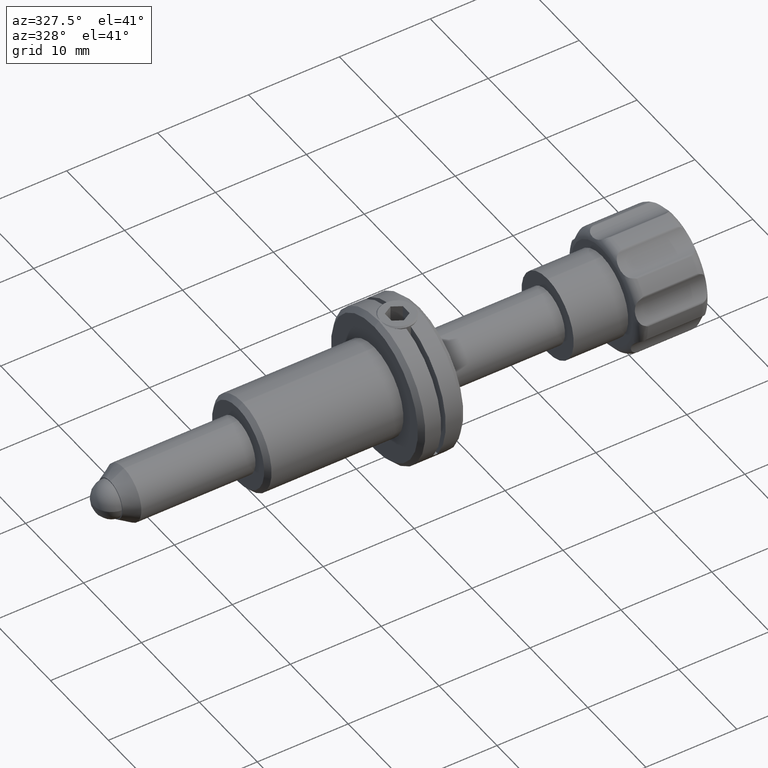
[diagram: clean part render]
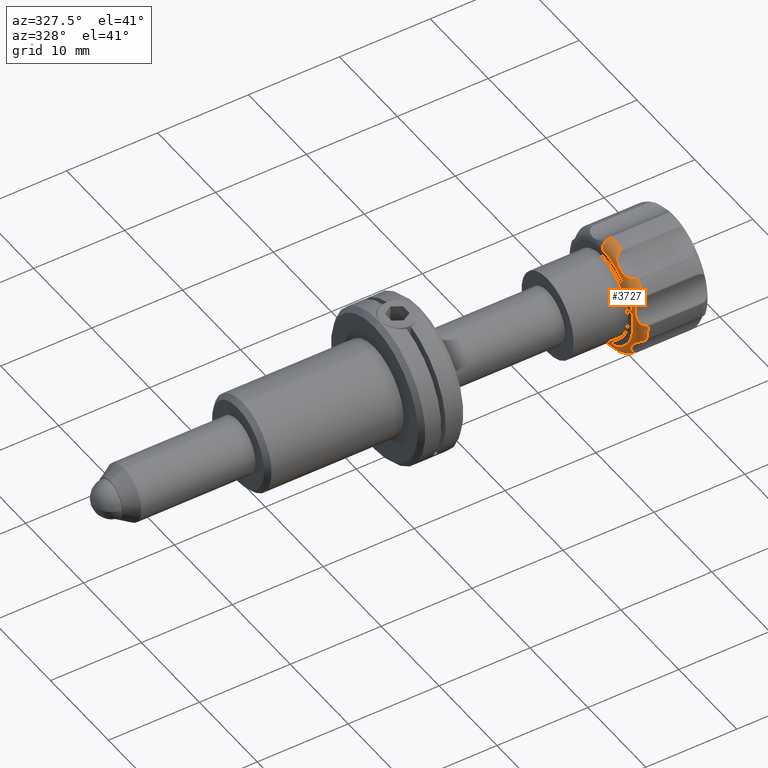
[diagram: same view with one face highlighted and labeled with its STEP entity id]
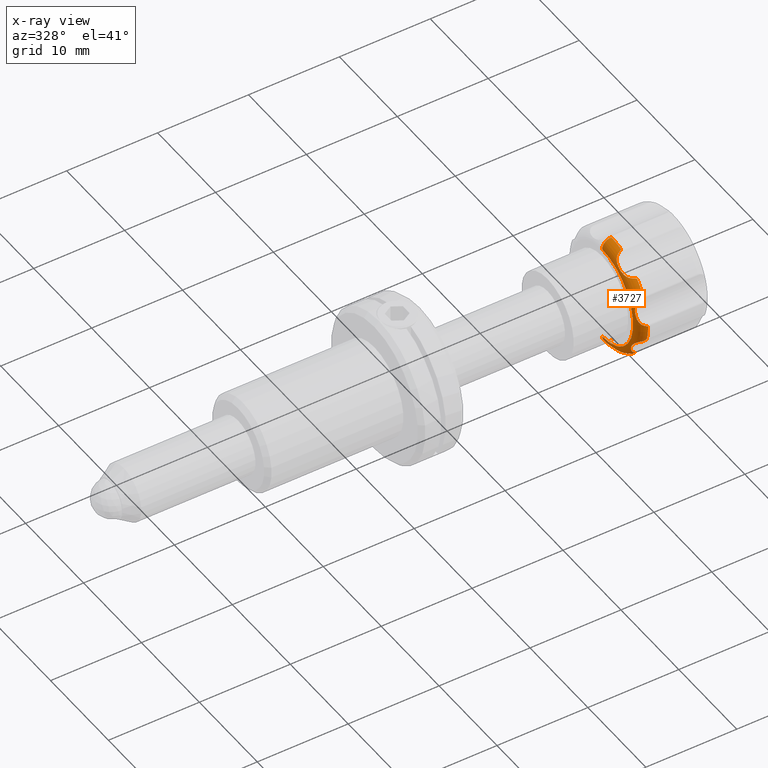
[diagram: x-ray of the same camera — body ghosted, the highlighted face saturated]
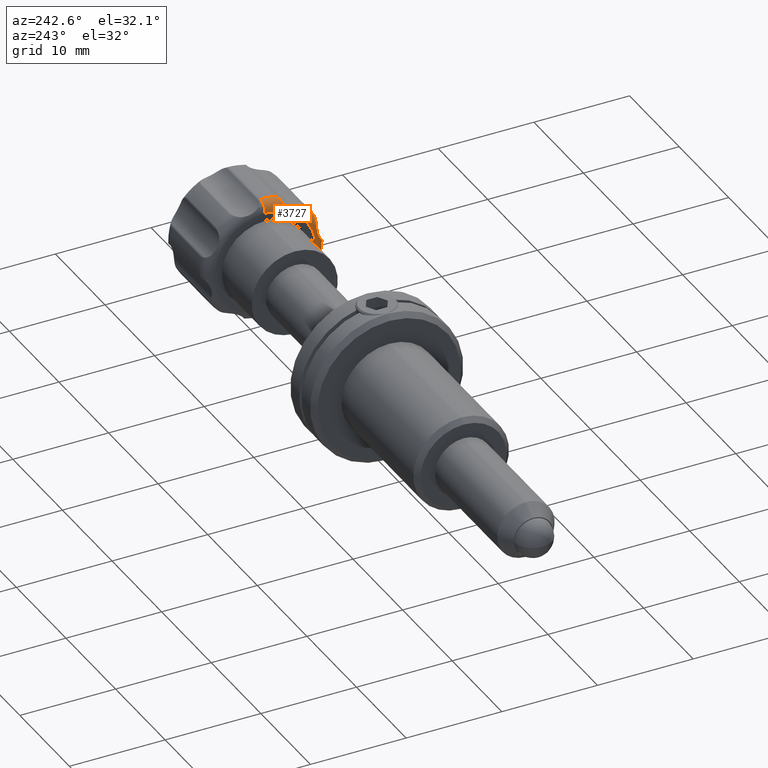
[diagram: same view with one face highlighted and labeled with its STEP entity id]
A machine part, auxiliary view. The second image highlights one B-rep face of the part: STEP entity #3727.
The next image is the same camera in x-ray: the body ghosted, the highlighted face saturated — about 0% of this face is hidden behind the body in this view.
A second angle (auxiliary view) of the same face is appended — the face is thin or edge-on in the first view.
In plain terms, the highlighted toroidal blend (fillet) surface has major radius 5.35 mm and minor (blend) radius 1 mm.
Its self-contained STEP definition (entity closure, byte-faithful):
#2 = CARTESIAN_POINT ( 'NONE',  ( 27.13921337448604021, -4.856283598709248750, -3.107576808534023627 ) ) ;
#8 = CARTESIAN_POINT ( 'NONE',  ( 27.91540443695953755, -6.093615518275886878, -1.762172362862720165 ) ) ;
#45 = CARTESIAN_POINT ( 'NONE',  ( 27.77944206506485969, -2.984056836229410870, -5.562879895844379696 ) ) ;
#47 = CIRCLE ( 'NONE', #3410, 1.000000000000000000 ) ;
#51 = CARTESIAN_POINT ( 'NONE',  ( 27.05000000000000426, -9.629649721936179265E-31, 3.851859888774471706E-30 ) ) ;
#56 = CARTESIAN_POINT ( 'NONE',  ( 27.95990894086483181, -3.088050639396993979, -5.548783547560642404 ) ) ;
#71 = ORIENTED_EDGE ( 'NONE', *, *, #3664, .F. ) ;
#82 = CARTESIAN_POINT ( 'NONE',  ( 27.69483520282409117, -2.933026279287377136, -5.559738344353715611 ) ) ;
#83 = EDGE_CURVE ( 'NONE', #690, #1685, #1389, .T. ) ;
#104 = VERTEX_POINT ( 'NONE', #1085 ) ;
#109 = CARTESIAN_POINT ( 'NONE',  ( 27.65267950003192965, -0.2589208520952931414, -6.262329555976413609 ) ) ;
#121 = CARTESIAN_POINT ( 'NONE',  ( 27.65267950005353015, -2.906932742517659651, -5.552796908396826048 ) ) ;
#125 = CARTESIAN_POINT ( 'NONE',  ( 27.53974654408672862, -4.172716725105521718, 4.611350560848902269 ) ) ;
#128 = ORIENTED_EDGE ( 'NONE', *, *, #2183, .T. ) ;
#130 = CARTESIAN_POINT ( 'NONE',  ( 28.05000000000000071, -3.132026596715888900, -5.523849146877983785 ) ) ;
#167 = ORIENTED_EDGE ( 'NONE', *, *, #3022, .F. ) ;
#171 = CARTESIAN_POINT ( 'NONE',  ( 27.13351138985510502, -1.360476839538218963, -5.588341936810441446 ) ) ;
#175 = CARTESIAN_POINT ( 'NONE',  ( 28.05000000000000071, -6.349806986227292782, 0.04950997535459428223 ) ) ;
#187 = CARTESIAN_POINT ( 'NONE',  ( 28.05000000000000426, -3.443357432102044523E-17, -2.211074569426205868E-16 ) ) ;
#209 = EDGE_CURVE ( 'NONE', #466, #858, #2190, .T. ) ;
#210 = ORIENTED_EDGE ( 'NONE', *, *, #2743, .T. ) ;
#211 = CARTESIAN_POINT ( 'NONE',  ( 27.16640943970278599, -0.9946609654149434210, -5.735078340428652055 ) ) ;
#232 = CARTESIAN_POINT ( 'NONE',  ( 27.25804361074120052, -5.464127793966206070, 2.392419713431666040 ) ) ;
#244 = EDGE_CURVE ( 'NONE', #3761, #1527, #2703, .T. ) ;
#249 = EDGE_CURVE ( 'NONE', #466, #1825, #1667, .T. ) ;
#263 = CARTESIAN_POINT ( 'NONE',  ( 27.13925720084247217, -5.119767319724039645, -2.651343011768362068 ) ) ;
#265 = CARTESIAN_POINT ( 'NONE',  ( 27.86828463751409757, -3.036876675556392513, -5.562879895869946800 ) ) ;
#280 = VERTEX_POINT ( 'NONE', #3391 ) ;
#309 = CARTESIAN_POINT ( 'NONE',  ( 27.98344650321710603, -5.542269083013157349, 3.099539979708065385 ) ) ;
#312 = VERTEX_POINT ( 'NONE', #3610 ) ;
#320 = DIRECTION ( 'NONE',  ( 0.000000000000000000, -5.204170427930324987E-18, 1.000000000000000000 ) ) ;
#328 = CARTESIAN_POINT ( 'NONE',  ( 27.54094784483719849, -1.906802449295098345, 5.920019630092001606 ) ) ;
#337 = CARTESIAN_POINT ( 'NONE',  ( 28.05000000000000426, -1.691273944614582803, 6.120628435403374645 ) ) ;
#350 = CARTESIAN_POINT ( 'NONE',  ( 27.44802519160618459, -4.072661661160530855, 4.614647577206733686 ) ) ;
#392 = ORIENTED_EDGE ( 'NONE', *, *, #3812, .T. ) ;
#453 = VERTEX_POINT ( 'NONE', #3697 ) ;
#466 = VERTEX_POINT ( 'NONE', #1663 ) ;
#475 = B_SPLINE_CURVE_WITH_KNOTS ( 'NONE', 3,
 ( #121, #82, #1578, #45 ),
 .UNSPECIFIED., .F., .F.,
 ( 4, 4 ),
 ( 7.021945501177915729E-16, 0.0001479757714944196511 ),
 .UNSPECIFIED. ) ;
#488 = CARTESIAN_POINT ( 'NONE',  ( 27.44775316104480112, -2.739344606769709145, -5.511423539205726918 ) ) ;
#508 = CARTESIAN_POINT ( 'NONE',  ( 27.18767208449510164, -2.136492834722592438, -5.458124016055490912 ) ) ;
#510 = CARTESIAN_POINT ( 'NONE',  ( 27.18767208449508743, -5.458124016055509564, 2.136492834722526712 ) ) ;
#522 = ORIENTED_EDGE ( 'NONE', *, *, #2997, .F. ) ;
#526 = CIRCLE ( 'NONE', #3214, 5.350000000000028955 ) ;
#592 = CARTESIAN_POINT ( 'NONE',  ( 27.78321307007622920, -1.823143063455625157, 6.047373725924073185 ) ) ;
#609 = AXIS2_PLACEMENT_3D ( 'NONE', #1532, #1246, #697 ) ;
#636 = ORIENTED_EDGE ( 'NONE', *, *, #249, .F. ) ;
#641 = ORIENTED_EDGE ( 'NONE', *, *, #2724, .F. ) ;
#688 = DIRECTION ( 'NONE',  ( -1.000000000000000000, 3.443357432102106769E-17, 2.211074569426361915E-16 ) ) ;
#690 = VERTEX_POINT ( 'NONE', #1279 ) ;
#697 = DIRECTION ( 'NONE',  ( 0.000000000000000000, -5.204170427930324987E-18, 1.000000000000000000 ) ) ;
#731 = B_SPLINE_CURVE_WITH_KNOTS ( 'NONE', 3,
 ( #3673, #1811, #1792, #2453, #309, #2467 ),
 .UNSPECIFIED., .F., .F.,
 ( 4, 2, 4 ),
 ( 7.019771604846601049E-16, 0.0002289455096684122487, 0.0004578910193361225307 ),
 .UNSPECIFIED. ) ;
#793 = DIRECTION ( 'NONE',  ( 1.000000000000000000, -3.443357432102106769E-17, -2.211074569426361915E-16 ) ) ;
#832 = VERTEX_POINT ( 'NONE', #884 ) ;
#835 = CARTESIAN_POINT ( 'NONE',  ( 27.25821204246627261, -4.658701631778276564, -3.725460657661715302 ) ) ;
#848 = CARTESIAN_POINT ( 'NONE',  ( 27.78310272331339448, -6.321292766106369143, 0.1997450345353473655 ) ) ;
#858 = VERTEX_POINT ( 'NONE', #2919 ) ;
#873 = CARTESIAN_POINT ( 'NONE',  ( 27.18803222192699565, -4.718761493344056035, -3.477886275079066891 ) ) ;
#877 = CARTESIAN_POINT ( 'NONE',  ( 27.78310272331338027, -4.611070049207614652, -4.328587912350943867 ) ) ;
#880 = CARTESIAN_POINT ( 'NONE',  ( 27.65267950003196162, -6.262329555976436701, 0.2589208520952119286 ) ) ;
#884 = CARTESIAN_POINT ( 'NONE',  ( 27.65267950003192965, -4.245051004748717993, 4.611220385363006713 ) ) ;
#894 = CARTESIAN_POINT ( 'NONE',  ( 27.65267950005353370, -1.870908493791702654, 5.981932203166544504 ) ) ;
#897 = CARTESIAN_POINT ( 'NONE',  ( 27.13351138985510147, -5.588341936810459210, 1.360476839538140359 ) ) ;
#910 = CARTESIAN_POINT ( 'NONE',  ( 27.18767208449509809, -5.370205075698812891, -2.348747932921162906 ) ) ;
#912 = AXIS2_PLACEMENT_3D ( 'NONE', #2407, #2351, #1736 ) ;
#916 = CARTESIAN_POINT ( 'NONE',  ( 28.05000000000000071, -6.120628435403395073, -1.691273944614518188 ) ) ;
#939 = DIRECTION ( 'NONE',  ( 1.000000000000000000, -3.443357432102106769E-17, -2.211074569426361915E-16 ) ) ;
#956 = CARTESIAN_POINT ( 'NONE',  ( 27.65267950005353370, -5.981932203166561379, -1.870908493791643368 ) ) ;
#969 = VERTEX_POINT ( 'NONE', #1828 ) ;
#1025 = CARTESIAN_POINT ( 'NONE',  ( 27.54094784483719849, -2.837773082915891365, -5.534398967475187447 ) ) ;
#1031 = CARTESIAN_POINT ( 'NONE',  ( 27.78310272331336961, -0.1997450345354044865, -6.321292766106376249 ) ) ;
#1033 = EDGE_CURVE ( 'NONE', #1519, #2185, #1442, .T. ) ;
#1042 = CARTESIAN_POINT ( 'NONE',  ( 27.13345850479823440, -1.614285068982068028, -5.520249363865242564 ) ) ;
#1085 = CARTESIAN_POINT ( 'NONE',  ( 28.05000000000000426, -7.790378095622344927E-16, -6.350000000000032507 ) ) ;
#1104 = VERTEX_POINT ( 'NONE', #175 ) ;
#1107 = CARTESIAN_POINT ( 'NONE',  ( 27.13925720084247217, -5.495004812747136924, 1.745439567001086267 ) ) ;
#1123 = ORIENTED_EDGE ( 'NONE', *, *, #1033, .F. ) ;
#1127 = CARTESIAN_POINT ( 'NONE',  ( 27.44802519160620236, -6.142855272714053960, 0.3832419165438322173 ) ) ;
#1139 = CARTESIAN_POINT ( 'NONE',  ( 27.30701591892978186, -2.093016884795839694, 5.651634992600660823 ) ) ;
#1199 = B_SPLINE_CURVE_WITH_KNOTS ( 'NONE', 3,
 ( #956, #2447, #2153, #8, #1213, #916 ),
 .UNSPECIFIED., .F., .F.,
 ( 4, 2, 4 ),
 ( 7.022245815637866452E-16, 0.0002289455096684097821, 0.0004578910193361173265 ),
 .UNSPECIFIED. ) ;
#1213 = CARTESIAN_POINT ( 'NONE',  ( 27.98344650321735827, -6.110681789969452105, -1.727270313549142511 ) ) ;
#1223 = ORIENTED_EDGE ( 'NONE', *, *, #244, .T. ) ;
#1237 = DIRECTION ( 'NONE',  ( 0.000000000000000000, -5.204170427930324216E-18, 1.000000000000000000 ) ) ;
#1246 = DIRECTION ( 'NONE',  ( 1.000000000000000000, -3.443357432102106769E-17, -2.211074569426361915E-16 ) ) ;
#1272 = CARTESIAN_POINT ( 'NONE',  ( 28.05000000000000426, -3.443357432102044523E-17, -2.211074569426205868E-16 ) ) ;
#1279 = CARTESIAN_POINT ( 'NONE',  ( 27.65267950005353015, -2.906932742517659651, -5.552796908396826048 ) ) ;
#1287 = CIRCLE ( 'NONE', #2665, 6.350000000000035172 ) ;
#1300 = CIRCLE ( 'NONE', #3423, 6.350000000000035172 ) ;
#1306 = DIRECTION ( 'NONE',  ( 0.000000000000000000, -5.204170427930324987E-18, 1.000000000000000000 ) ) ;
#1310 = CARTESIAN_POINT ( 'NONE',  ( 27.65267950003192965, -4.245051004748717993, 4.611220385363006713 ) ) ;
#1376 = CARTESIAN_POINT ( 'NONE',  ( 27.65267950003196162, -6.262329555976436701, 0.2589208520952119286 ) ) ;
#1382 = CARTESIAN_POINT ( 'NONE',  ( 27.30785379086186992, -0.5576931221568094399, -6.001741005386653782 ) ) ;
#1389 = B_SPLINE_CURVE_WITH_KNOTS ( 'NONE', 3,
 ( #1666, #1025, #488, #2539, #1691, #508, #2893, #3773, #1042, #171, #1918, #211, #2242, #1940, #1382, #2909, #1401, #3140 ),
 .UNSPECIFIED., .F., .F.,
 ( 4, 2, 2, 2, 2, 2, 2, 2, 4 ),
 ( 0.0004183084499995115514, 0.0008152739970678806640, 0.001212239544136249885, 0.001609205091204619215, 0.002006170638272987243, 0.002403136185341355705, 0.002800101732409724167, 0.003197067279478092629, 0.003594032826546461092 ),
 .UNSPECIFIED. ) ;
#1401 = CARTESIAN_POINT ( 'NONE',  ( 27.53974654408673928, -0.3101609597120548178, -6.211273544297286620 ) ) ;
#1442 = CIRCLE ( 'NONE', #1997, 6.350000000000035172 ) ;
#1449 = EDGE_CURVE ( 'NONE', #2415, #3588, #1199, .T. ) ;
#1458 = CARTESIAN_POINT ( 'NONE',  ( 27.13345850479822374, -5.044877678075256888, -2.761933839984415329 ) ) ;
#1461 = CARTESIAN_POINT ( 'NONE',  ( 27.13921337448603666, -5.631299698384796493, 1.236522429639775433 ) ) ;
#1471 = CARTESIAN_POINT ( 'NONE',  ( 27.16640943970278244, -3.351981271526757400, 4.758644298779632464 ) ) ;
#1480 = CARTESIAN_POINT ( 'NONE',  ( 27.91527785667221195, -4.578037157012559533, -4.401112438241423064 ) ) ;
#1519 = VERTEX_POINT ( 'NONE', #3118 ) ;
#1527 = VERTEX_POINT ( 'NONE', #2845 ) ;
#1532 = CARTESIAN_POINT ( 'NONE',  ( 28.05000000000000426, -3.443357432102044523E-17, -2.211074569426205868E-16 ) ) ;
#1533 = EDGE_CURVE ( 'NONE', #1104, #3588, #1300, .T. ) ;
#1552 = DIRECTION ( 'NONE',  ( 2.211074569426361915E-16, -5.204170427930331920E-18, 1.000000000000000000 ) ) ;
#1578 = CARTESIAN_POINT ( 'NONE',  ( 27.73702224776230096, -2.958836855797809307, -5.562879895860390000 ) ) ;
#1587 = ORIENTED_EDGE ( 'NONE', *, *, #1533, .F. ) ;
#1598 = B_SPLINE_CURVE_WITH_KNOTS ( 'NONE', 3,
 ( #2036, #1972, #848, #1376 ),
 .UNSPECIFIED., .F., .F.,
 ( 4, 4 ),
 ( -6.324575472140497717E-06, 0.0004571225949801416711 ),
 .UNSPECIFIED. ) ;
#1600 = CARTESIAN_POINT ( 'NONE',  ( 28.05000000000000426, -4.454982739877404008, 4.525000418496643917 ) ) ;
#1604 = ORIENTED_EDGE ( 'NONE', *, *, #1449, .T. ) ;
#1612 = EDGE_CURVE ( 'NONE', #2415, #858, #2028, .T. ) ;
#1623 = ORIENTED_EDGE ( 'NONE', *, *, #3469, .T. ) ;
#1663 = CARTESIAN_POINT ( 'NONE',  ( 28.05000000000000071, -4.525000418496690990, -4.454982739877356934 ) ) ;
#1666 = CARTESIAN_POINT ( 'NONE',  ( 27.65267950005353015, -2.906932742517659651, -5.552796908396826048 ) ) ;
#1667 = CIRCLE ( 'NONE', #609, 6.350000000000035172 ) ;
#1670 = ORIENTED_EDGE ( 'NONE', *, *, #3312, .F. ) ;
#1685 = VERTEX_POINT ( 'NONE', #109 ) ;
#1691 = CARTESIAN_POINT ( 'NONE',  ( 27.25804361074120052, -2.392419713431728656, -5.464127793966182089 ) ) ;
#1712 = CARTESIAN_POINT ( 'NONE',  ( 27.16648532775297298, -5.464022553208312871, 2.006637370562063705 ) ) ;
#1736 = DIRECTION ( 'NONE',  ( -1.000000000000000000, 3.443357432102104304E-17, 0.000000000000000000 ) ) ;
#1741 = CARTESIAN_POINT ( 'NONE',  ( 27.13921337448604021, -3.107576808534062707, 4.856283598709222993 ) ) ;
#1743 = VERTEX_POINT ( 'NONE', #2551 ) ;
#1768 = CARTESIAN_POINT ( 'NONE',  ( 28.05000000000000071, -4.525000418496690990, -4.454982739877356934 ) ) ;
#1785 = CARTESIAN_POINT ( 'NONE',  ( 27.91540443695955176, -1.762172362862802766, 6.093615518275862897 ) ) ;
#1792 = CARTESIAN_POINT ( 'NONE',  ( 27.78321307007621854, -5.565295793212962749, 2.986982146727572562 ) ) ;
#1811 = CARTESIAN_POINT ( 'NONE',  ( 27.71790206154980041, -5.563536575958409891, 2.947304203430343161 ) ) ;
#1825 = VERTEX_POINT ( 'NONE', #130 ) ;
#1828 = CARTESIAN_POINT ( 'NONE',  ( 27.65267950003196162, -6.262329555976436701, 0.2589208520952119286 ) ) ;
#1832 = ORIENTED_EDGE ( 'NONE', *, *, #83, .F. ) ;
#1898 = CIRCLE ( 'NONE', #2418, 6.350000000000035172 ) ;
#1918 = CARTESIAN_POINT ( 'NONE',  ( 27.13921337448603666, -1.236522429639854703, -5.631299698384776065 ) ) ;
#1925 = CARTESIAN_POINT ( 'NONE',  ( 27.65267950003192965, -4.245051004748717993, 4.611220385363006713 ) ) ;
#1940 = CARTESIAN_POINT ( 'NONE',  ( 27.25821204246626905, -0.6599010212789552243, -5.928498009431540261 ) ) ;
#1972 = CARTESIAN_POINT ( 'NONE',  ( 27.91527785667130601, -6.349217568092560882, 0.1251046684008943755 ) ) ;
#1997 = AXIS2_PLACEMENT_3D ( 'NONE', #3583, #939, #2139 ) ;
#2016 = CARTESIAN_POINT ( 'NONE',  ( 27.65267950003194741, -4.611220385363046681, -4.245051004748679802 ) ) ;
#2024 = B_SPLINE_CURVE_WITH_KNOTS ( 'NONE', 3,
 ( #3018, #328, #3806, #1139, #3249, #2962, #3224, #2100, #2337, #2979, #1741, #1471, #3844, #2376, #2212, #350, #125, #1310 ),
 .UNSPECIFIED., .F., .F.,
 ( 4, 2, 2, 2, 2, 2, 2, 2, 4 ),
 ( 0.0004183084499995056967, 0.0008152739970678755683, 0.001212239544136245331, 0.001609205091204615311, 0.002006170638272985075, 0.002403136185341354838, 0.002800101732409724601, 0.003197067279478093930, 0.003594032826546465428 ),
 .UNSPECIFIED. ) ;
#2028 = B_SPLINE_CURVE_WITH_KNOTS ( 'NONE', 3,
 ( #2673, #2614, #2947, #2104, #3591, #910, #3512, #263, #1458, #2656, #2, #3791, #873, #835, #2064, #2965, #2985, #2016 ),
 .UNSPECIFIED., .F., .F.,
 ( 4, 2, 2, 2, 2, 2, 2, 2, 4 ),
 ( 0.0004183084499995071062, 0.0008152739970678807725, 0.001212239544136254222, 0.001609205091204627888, 0.002006170638273001555, 0.002403136185341375221, 0.002800101732409748453, 0.003197067279478122553, 0.003594032826546494919 ),
 .UNSPECIFIED. ) ;
#2036 = CARTESIAN_POINT ( 'NONE',  ( 28.05000000000000071, -6.349806986227292782, 0.04950997535459428223 ) ) ;
#2064 = CARTESIAN_POINT ( 'NONE',  ( 27.30785379086187703, -4.638220352332458774, -3.849523175336095004 ) ) ;
#2068 = CARTESIAN_POINT ( 'NONE',  ( 27.65267950003194741, -4.611220385363046681, -4.245051004748679802 ) ) ;
#2071 = CARTESIAN_POINT ( 'NONE',  ( 27.65267950005353370, -5.552796908396858022, 2.906932742517602364 ) ) ;
#2073 = EDGE_CURVE ( 'NONE', #2534, #2185, #731, .T. ) ;
#2100 = CARTESIAN_POINT ( 'NONE',  ( 27.13925720084246862, -2.651343011768407365, 5.119767319724017440 ) ) ;
#2104 = CARTESIAN_POINT ( 'NONE',  ( 27.30701591892978541, -5.651634992600679475, -2.093016884795784183 ) ) ;
#2128 = B_SPLINE_CURVE_WITH_KNOTS ( 'NONE', 3,
 ( #2856, #3129, #1031, #2230 ),
 .UNSPECIFIED., .F., .F.,
 ( 4, 4 ),
 ( -6.324575472140370662E-06, 0.0004571225949801691556 ),
 .UNSPECIFIED. ) ;
#2139 = DIRECTION ( 'NONE',  ( 0.000000000000000000, -5.204170427930324987E-18, 1.000000000000000000 ) ) ;
#2153 = CARTESIAN_POINT ( 'NONE',  ( 27.78321307007621499, -6.047373725924090948, -1.823143063455555879 ) ) ;
#2155 = DIRECTION ( 'NONE',  ( 0.000000000000000000, -1.172605094868048255E-16, -1.000000000000000000 ) ) ;
#2183 = EDGE_CURVE ( 'NONE', #1519, #832, #2784, .T. ) ;
#2185 = VERTEX_POINT ( 'NONE', #2247 ) ;
#2190 = B_SPLINE_CURVE_WITH_KNOTS ( 'NONE', 3,
 ( #1768, #1480, #877, #2068 ),
 .UNSPECIFIED., .F., .F.,
 ( 4, 4 ),
 ( -6.324575472139417750E-06, 0.0004571225949801537600 ),
 .UNSPECIFIED. ) ;
#2192 = CARTESIAN_POINT ( 'NONE',  ( 27.78310272331336606, -4.328587912350998046, 4.611070049207567578 ) ) ;
#2212 = CARTESIAN_POINT ( 'NONE',  ( 27.30785379086186637, -3.849523175336128311, 4.638220352332421470 ) ) ;
#2230 = CARTESIAN_POINT ( 'NONE',  ( 27.65267950003192965, -0.2589208520952931414, -6.262329555976413609 ) ) ;
#2237 = ORIENTED_EDGE ( 'NONE', *, *, #209, .T. ) ;
#2242 = CARTESIAN_POINT ( 'NONE',  ( 27.18803222192699565, -0.8774312814415042849, -5.795905220049568207 ) ) ;
#2243 = CARTESIAN_POINT ( 'NONE',  ( 27.65267950005353370, -5.552796908396858022, 2.906932742517602364 ) ) ;
#2247 = CARTESIAN_POINT ( 'NONE',  ( 28.05000000000000426, -5.523849146878018423, 3.132026596715827171 ) ) ;
#2337 = CARTESIAN_POINT ( 'NONE',  ( 27.13345850479822730, -2.761933839984458849, 5.044877678075232907 ) ) ;
#2346 = CARTESIAN_POINT ( 'NONE',  ( 27.30701591892977831, -5.476295860436195539, 2.516322995682006791 ) ) ;
#2351 = DIRECTION ( 'NONE',  ( 3.443357432102106769E-17, 1.000000000000000000, 5.204170427930316513E-18 ) ) ;
#2365 = CARTESIAN_POINT ( 'NONE',  ( 28.05000000000000071, -3.132026596715888900, -5.523849146877983785 ) ) ;
#2376 = CARTESIAN_POINT ( 'NONE',  ( 27.25821204246627971, -3.725460657661746833, 4.658701631778242813 ) ) ;
#2407 = CARTESIAN_POINT ( 'NONE',  ( 28.05000000000000426, -6.227588611044783055E-17, 5.350000000000028955 ) ) ;
#2415 = VERTEX_POINT ( 'NONE', #3243 ) ;
#2418 = AXIS2_PLACEMENT_3D ( 'NONE', #1272, #3619, #1306 ) ;
#2422 = FACE_OUTER_BOUND ( 'NONE', #2668, .T. ) ;
#2447 = CARTESIAN_POINT ( 'NONE',  ( 27.71790206154979685, -6.018073228704826860, -1.849955651774290777 ) ) ;
#2449 = DIRECTION ( 'NONE',  ( -3.443357432102104304E-17, -1.000000000000000000, 1.172605094868048008E-16 ) ) ;
#2453 = CARTESIAN_POINT ( 'NONE',  ( 27.91540443695954465, -5.554880882316257207, 3.062792827516617411 ) ) ;
#2462 = CARTESIAN_POINT ( 'NONE',  ( 27.65267950005353370, -1.870908493791702654, 5.981932203166544504 ) ) ;
#2467 = CARTESIAN_POINT ( 'NONE',  ( 28.05000000000000426, -5.523849146878018423, 3.132026596715827171 ) ) ;
#2534 = VERTEX_POINT ( 'NONE', #2243 ) ;
#2539 = CARTESIAN_POINT ( 'NONE',  ( 27.30701591892978186, -2.516322995682067631, -5.476295860436170670 ) ) ;
#2551 = CARTESIAN_POINT ( 'NONE',  ( 27.05000000000000426, -7.031907676583175340E-16, -5.349999999999999645 ) ) ;
#2582 = CARTESIAN_POINT ( 'NONE',  ( 28.05000000000000426, -3.443357432102044523E-17, -2.211074569426205868E-16 ) ) ;
#2607 = ORIENTED_EDGE ( 'NONE', *, *, #2073, .T. ) ;
#2614 = CARTESIAN_POINT ( 'NONE',  ( 27.54094784483719494, -5.920019630092021146, -1.906802449295036395 ) ) ;
#2656 = CARTESIAN_POINT ( 'NONE',  ( 27.13351138985510147, -4.913556877992548699, -2.989552080223103925 ) ) ;
#2658 = CARTESIAN_POINT ( 'NONE',  ( 27.53974654408675349, -6.211273544297305271, 0.3101609597119712736 ) ) ;
#2665 = AXIS2_PLACEMENT_3D ( 'NONE', #2582, #3756, #320 ) ;
#2668 = EDGE_LOOP ( 'NONE', ( #167, #2918, #3782, #3428, #1832, #1623, #210, #636, #2237, #3519, #1604, #1587, #392, #71, #2607, #1123, #128, #522, #1223, #641, #1670 ) ) ;
#2673 = CARTESIAN_POINT ( 'NONE',  ( 27.65267950005353370, -5.981932203166561379, -1.870908493791643368 ) ) ;
#2676 = CARTESIAN_POINT ( 'NONE',  ( 27.54094784483719849, -5.534398967475219422, 2.837773082915836298 ) ) ;
#2696 = CARTESIAN_POINT ( 'NONE',  ( 28.05000000000000426, -3.443357432102044523E-17, -2.211074569426205868E-16 ) ) ;
#2703 = B_SPLINE_CURVE_WITH_KNOTS ( 'NONE', 3,
 ( #894, #3272, #592, #1785, #3680, #337 ),
 .UNSPECIFIED., .F., .F.,
 ( 4, 2, 4 ),
 ( 7.023060985796757399E-16, 0.0002289455096684108663, 0.0004578910193361193865 ),
 .UNSPECIFIED. ) ;
#2724 = EDGE_CURVE ( 'NONE', #3390, #1527, #1287, .T. ) ;
#2743 = EDGE_CURVE ( 'NONE', #453, #1825, #3792, .T. ) ;
#2744 = CARTESIAN_POINT ( 'NONE',  ( 28.05000000000000426, -6.617773000754294700E-16, -5.350000000000028955 ) ) ;
#2784 = B_SPLINE_CURVE_WITH_KNOTS ( 'NONE', 3,
 ( #1600, #3718, #2192, #1925 ),
 .UNSPECIFIED., .F., .F.,
 ( 4, 4 ),
 ( -6.324575472141595471E-06, 0.0004571225949801727877 ),
 .UNSPECIFIED. ) ;
#2794 = TOROIDAL_SURFACE ( 'NONE', #2984, 5.349999999999999645, 1.000000000000000000 ) ;
#2845 = CARTESIAN_POINT ( 'NONE',  ( 28.05000000000000426, -1.691273944614582803, 6.120628435403374645 ) ) ;
#2856 = CARTESIAN_POINT ( 'NONE',  ( 28.05000000000000071, -0.04950997535465977845, -6.349806986227291894 ) ) ;
#2893 = CARTESIAN_POINT ( 'NONE',  ( 27.16648532775298008, -2.006637370562132539, -5.464022553208293331 ) ) ;
#2909 = CARTESIAN_POINT ( 'NONE',  ( 27.44802519160619525, -0.3832419165439188147, -6.142855272714032644 ) ) ;
#2912 = CARTESIAN_POINT ( 'NONE',  ( 27.16640943970277178, -5.735078340428670707, 0.9946609654148607094 ) ) ;
#2918 = ORIENTED_EDGE ( 'NONE', *, *, #3520, .T. ) ;
#2919 = CARTESIAN_POINT ( 'NONE',  ( 27.65267950003194741, -4.611220385363046681, -4.245051004748679802 ) ) ;
#2947 = CARTESIAN_POINT ( 'NONE',  ( 27.44775316104480467, -5.834174106017196770, -1.960155811109858481 ) ) ;
#2962 = CARTESIAN_POINT ( 'NONE',  ( 27.18767208449509809, -2.348747932921214865, 5.370205075698792463 ) ) ;
#2965 = CARTESIAN_POINT ( 'NONE',  ( 27.44802519160619880, -4.614647577206774542, -4.072661661160497992 ) ) ;
#2979 = CARTESIAN_POINT ( 'NONE',  ( 27.13351138985509436, -2.989552080223145225, 4.913556877992525607 ) ) ;
#2984 = AXIS2_PLACEMENT_3D ( 'NONE', #2696, #3612, #1552 ) ;
#2985 = CARTESIAN_POINT ( 'NONE',  ( 27.53974654408675349, -4.611350560848944902, -4.172716725105489743 ) ) ;
#2997 = EDGE_CURVE ( 'NONE', #3761, #832, #2024, .T. ) ;
#3018 = CARTESIAN_POINT ( 'NONE',  ( 27.65267950005353370, -1.870908493791702654, 5.981932203166544504 ) ) ;
#3022 = EDGE_CURVE ( 'NONE', #1743, #312, #526, .T. ) ;
#3024 = CARTESIAN_POINT ( 'NONE',  ( 27.77944206506485969, -2.984056836229410870, -5.562879895844379696 ) ) ;
#3097 = B_SPLINE_CURVE_WITH_KNOTS ( 'NONE', 3,
 ( #2071, #2676, #3273, #2346, #232, #510, #1712, #1107, #3535, #897, #1461, #2912, #3258, #3777, #3797, #1127, #2658, #880 ),
 .UNSPECIFIED., .F., .F.,
 ( 4, 2, 2, 2, 2, 2, 2, 2, 4 ),
 ( 0.0004183084499995094914, 0.0008152739970678822903, 0.001212239544136255089, 0.001609205091204627888, 0.002006170638273000687, 0.002403136185341373486, 0.002800101732409746285, 0.003197067279478119518, 0.003594032826546492750 ),
 .UNSPECIFIED. ) ;
#3118 = CARTESIAN_POINT ( 'NONE',  ( 28.05000000000000426, -4.454982739877404008, 4.525000418496643917 ) ) ;
#3129 = CARTESIAN_POINT ( 'NONE',  ( 27.91527785667299000, -0.1251046684039811008, -6.349217568092536013 ) ) ;
#3135 = EDGE_CURVE ( 'NONE', #280, #1685, #2128, .T. ) ;
#3140 = CARTESIAN_POINT ( 'NONE',  ( 27.65267950003192965, -0.2589208520952931414, -6.262329555976413609 ) ) ;
#3214 = AXIS2_PLACEMENT_3D ( 'NONE', #51, #688, #1237 ) ;
#3224 = CARTESIAN_POINT ( 'NONE',  ( 27.16648532775298008, -2.444740507823029319, 5.282554292036630628 ) ) ;
#3243 = CARTESIAN_POINT ( 'NONE',  ( 27.65267950005353370, -5.981932203166561379, -1.870908493791643368 ) ) ;
#3249 = CARTESIAN_POINT ( 'NONE',  ( 27.25804361074119697, -2.172025613571467506, 5.555418019195320412 ) ) ;
#3258 = CARTESIAN_POINT ( 'NONE',  ( 27.18803222192700275, -5.795905220049592188, 0.8774312814414195749 ) ) ;
#3272 = CARTESIAN_POINT ( 'NONE',  ( 27.71790206154980041, -1.849955651774352727, 6.018073228704810873 ) ) ;
#3273 = CARTESIAN_POINT ( 'NONE',  ( 27.44775316104480467, -5.511423539205753563, 2.739344606769651413 ) ) ;
#3312 = EDGE_CURVE ( 'NONE', #312, #3390, #3712, .T. ) ;
#3358 = CARTESIAN_POINT ( 'NONE',  ( 28.05000000000000426, -6.748005653837819020E-17, 6.350000000000034284 ) ) ;
#3390 = VERTEX_POINT ( 'NONE', #3358 ) ;
#3391 = CARTESIAN_POINT ( 'NONE',  ( 28.05000000000000071, -0.04950997535465977845, -6.349806986227291894 ) ) ;
#3410 = AXIS2_PLACEMENT_3D ( 'NONE', #2744, #2449, #2155 ) ;
#3423 = AXIS2_PLACEMENT_3D ( 'NONE', #187, #793, #3698 ) ;
#3428 = ORIENTED_EDGE ( 'NONE', *, *, #3135, .T. ) ;
#3469 = EDGE_CURVE ( 'NONE', #690, #453, #475, .T. ) ;
#3494 = EDGE_CURVE ( 'NONE', #280, #104, #1898, .T. ) ;
#3512 = CARTESIAN_POINT ( 'NONE',  ( 27.16648532775298364, -5.282554292036651056, -2.444740507822979581 ) ) ;
#3519 = ORIENTED_EDGE ( 'NONE', *, *, #1612, .F. ) ;
#3520 = EDGE_CURVE ( 'NONE', #1743, #104, #47, .T. ) ;
#3535 = CARTESIAN_POINT ( 'NONE',  ( 27.13345850479822374, -5.520249363865261216, 1.614285068981992977 ) ) ;
#3583 = CARTESIAN_POINT ( 'NONE',  ( 28.05000000000000426, -3.443357432102044523E-17, -2.211074569426205868E-16 ) ) ;
#3588 = VERTEX_POINT ( 'NONE', #3757 ) ;
#3591 = CARTESIAN_POINT ( 'NONE',  ( 27.25804361074120408, -5.555418019195339063, -2.172025613571412439 ) ) ;
#3610 = CARTESIAN_POINT ( 'NONE',  ( 27.05000000000000426, -2.784231178942834674E-17, 5.350000000000028955 ) ) ;
#3612 = DIRECTION ( 'NONE',  ( 1.000000000000000000, -3.443357432102106769E-17, -2.211074569426361915E-16 ) ) ;
#3619 = DIRECTION ( 'NONE',  ( 1.000000000000000000, -3.443357432102106769E-17, -2.211074569426361915E-16 ) ) ;
#3664 = EDGE_CURVE ( 'NONE', #2534, #969, #3097, .T. ) ;
#3673 = CARTESIAN_POINT ( 'NONE',  ( 27.65267950005353370, -5.552796908396858022, 2.906932742517602364 ) ) ;
#3680 = CARTESIAN_POINT ( 'NONE',  ( 27.98344650321705984, -1.727270313548686209, 6.110681789969576450 ) ) ;
#3697 = CARTESIAN_POINT ( 'NONE',  ( 27.77944206506485969, -2.984056836229410870, -5.562879895844379696 ) ) ;
#3698 = DIRECTION ( 'NONE',  ( 0.000000000000000000, -5.204170427930324987E-18, 1.000000000000000000 ) ) ;
#3712 = CIRCLE ( 'NONE', #912, 1.000000000000000888 ) ;
#3718 = CARTESIAN_POINT ( 'NONE',  ( 27.91527785667199879, -4.401112438241733926, 4.578037157012258440 ) ) ;
#3727 = ADVANCED_FACE ( 'NONE', ( #2422 ), #2794, .T. ) ;
#3756 = DIRECTION ( 'NONE',  ( 1.000000000000000000, -3.443357432102106769E-17, -2.211074569426361915E-16 ) ) ;
#3757 = CARTESIAN_POINT ( 'NONE',  ( 28.05000000000000071, -6.120628435403395073, -1.691273944614518188 ) ) ;
#3761 = VERTEX_POINT ( 'NONE', #2462 ) ;
#3773 = CARTESIAN_POINT ( 'NONE',  ( 27.13925720084247217, -1.745439567001159764, -5.495004812747118272 ) ) ;
#3777 = CARTESIAN_POINT ( 'NONE',  ( 27.25821204246627261, -5.928498009431562465, 0.6599010212788686269 ) ) ;
#3782 = ORIENTED_EDGE ( 'NONE', *, *, #3494, .F. ) ;
#3791 = CARTESIAN_POINT ( 'NONE',  ( 27.16640943970277178, -4.758644298779661774, -3.351981271526721429 ) ) ;
#3792 = B_SPLINE_CURVE_WITH_KNOTS ( 'NONE', 3,
 ( #3024, #265, #56, #2365 ),
 .UNSPECIFIED., .F., .F.,
 ( 4, 4 ),
 ( 0.0001479757714944196511, 0.0004578910193361238317 ),
 .UNSPECIFIED. ) ;
#3797 = CARTESIAN_POINT ( 'NONE',  ( 27.30785379086187703, -6.001741005386678651, 0.5576931221567219543 ) ) ;
#3806 = CARTESIAN_POINT ( 'NONE',  ( 27.44775316104480467, -1.960155811109917767, 5.834174106017178119 ) ) ;
#3812 = EDGE_CURVE ( 'NONE', #1104, #969, #1598, .T. ) ;
#3844 = CARTESIAN_POINT ( 'NONE',  ( 27.18803222192699565, -3.477886275079102418, 4.718761493344024949 ) ) ;